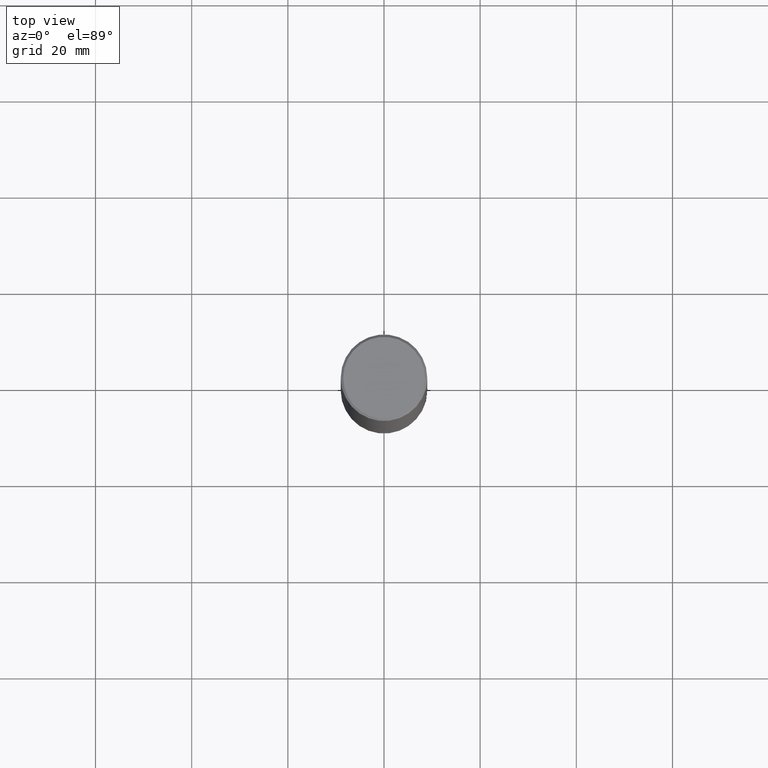
[diagram: clean part render]
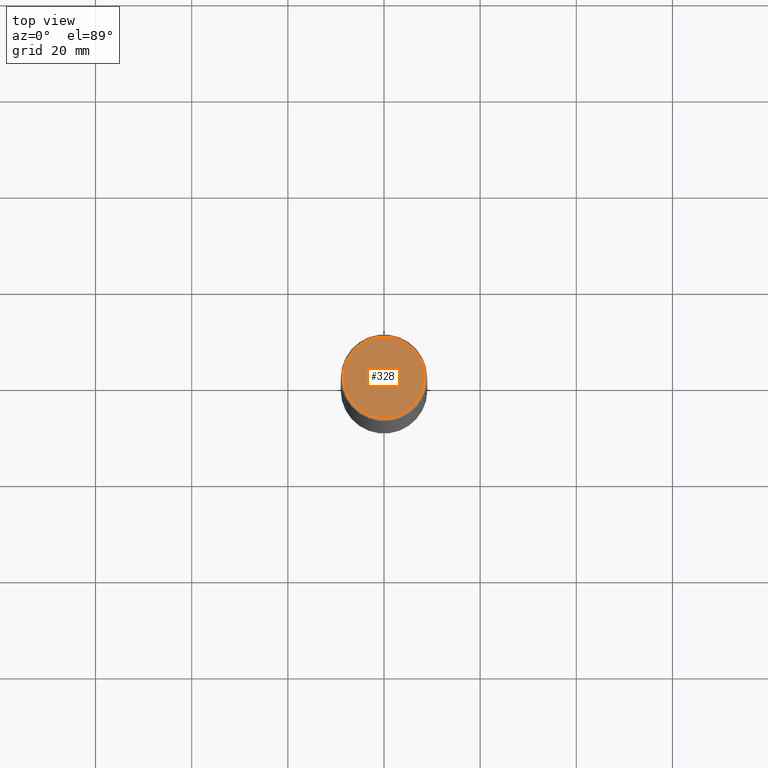
[diagram: same view with one face highlighted and labeled with its STEP entity id]
A machine part, top view. The second image highlights one B-rep face of the part: STEP entity #328.
In plain terms, the highlighted planar face has unit normal (0, -0, -1).
Its self-contained STEP definition (entity closure, byte-faithful):
#5 = CARTESIAN_POINT ( 'NONE',  ( -1.043851414335219820E-46, 1.490343170380447200E-32, 4.268512490100411279E-18 ) ) ;
#7 = ORIENTED_EDGE ( 'NONE', *, *, #16, .T. ) ;
#16 = EDGE_CURVE ( 'NONE', #217, #47, #309, .T. ) ;
#47 = VERTEX_POINT ( 'NONE', #316 ) ;
#54 = AXIS2_PLACEMENT_3D ( 'NONE', #5, #253, #76 ) ;
#76 = DIRECTION ( 'NONE',  ( 1.000000000000000000, -6.982962677686266711E-15, 4.876061227832602160E-29 ) ) ;
#86 = AXIS2_PLACEMENT_3D ( 'NONE', #189, #194, #258 ) ;
#121 = DIRECTION ( 'NONE',  ( -2.445468806185136597E-29, 3.491481338843145583E-15, 1.000000000000000000 ) ) ;
#136 = ORIENTED_EDGE ( 'NONE', *, *, #193, .T. ) ;
#149 = AXIS2_PLACEMENT_3D ( 'NONE', #274, #121, #276 ) ;
#165 = FACE_OUTER_BOUND ( 'NONE', #334, .T. ) ;
#189 = CARTESIAN_POINT ( 'NONE',  ( 2.334753571284400520E-15, 0.3343499999999996475, -1.165242529397154385E-15 ) ) ;
#193 = EDGE_CURVE ( 'NONE', #47, #217, #324, .T. ) ;
#194 = DIRECTION ( 'NONE',  ( 2.438088387897960049E-29, -3.491481338843145188E-15, -1.000000000000000000 ) ) ;
#217 = VERTEX_POINT ( 'NONE', #331 ) ;
#253 = DIRECTION ( 'NONE',  ( -2.445468806185136597E-29, 3.491481338843145583E-15, 1.000000000000000000 ) ) ;
#258 = DIRECTION ( 'NONE',  ( -1.000000000000000000, 6.982962677686265922E-15, -4.876176775795935793E-29 ) ) ;
#274 = CARTESIAN_POINT ( 'NONE',  ( -1.043851414335219820E-46, 1.490343170380447200E-32, 4.268512490100411279E-18 ) ) ;
#276 = DIRECTION ( 'NONE',  ( 1.000000000000000000, -6.982962677686266711E-15, 4.876061227832602160E-29 ) ) ;
#309 = CIRCLE ( 'NONE', #54, 0.3343499999999996475 ) ;
#312 = PLANE ( 'NONE',  #86 ) ;
#316 = CARTESIAN_POINT ( 'NONE',  ( -0.3343499999999996475, 2.369668384672832169E-15, 4.268512490083961526E-18 ) ) ;
#324 = CIRCLE ( 'NONE', #149, 0.3343499999999996475 ) ;
#328 = ADVANCED_FACE ( 'NONE', ( #165 ), #312, .F. ) ;
#331 = CARTESIAN_POINT ( 'NONE',  ( 0.3343499999999996475, -2.397327298921056737E-15, 4.268512490116958099E-18 ) ) ;
#334 = EDGE_LOOP ( 'NONE', ( #136, #7 ) ) ;